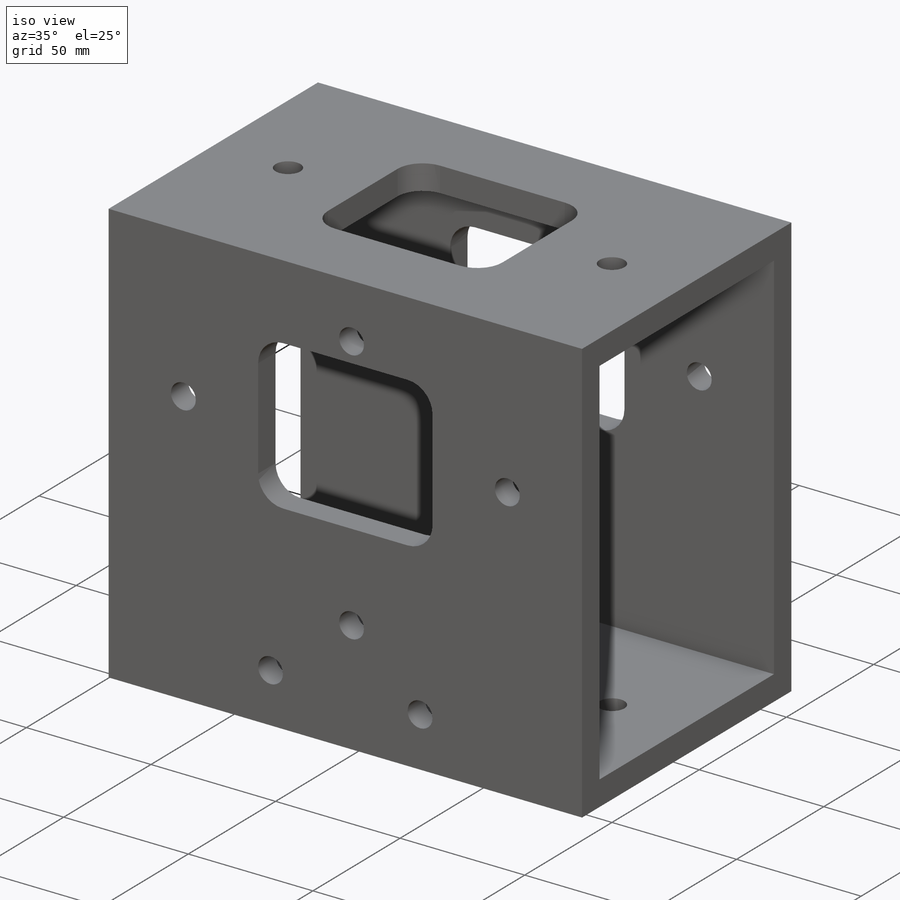
[diagram: iso view]
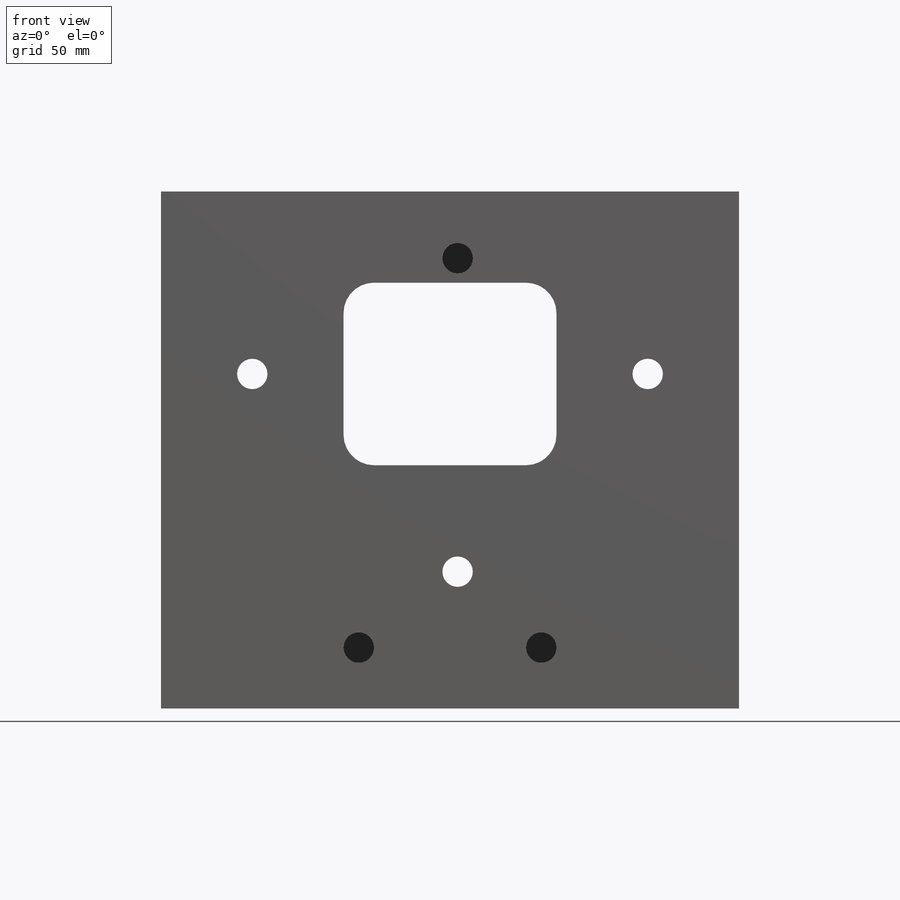
[diagram: front view]
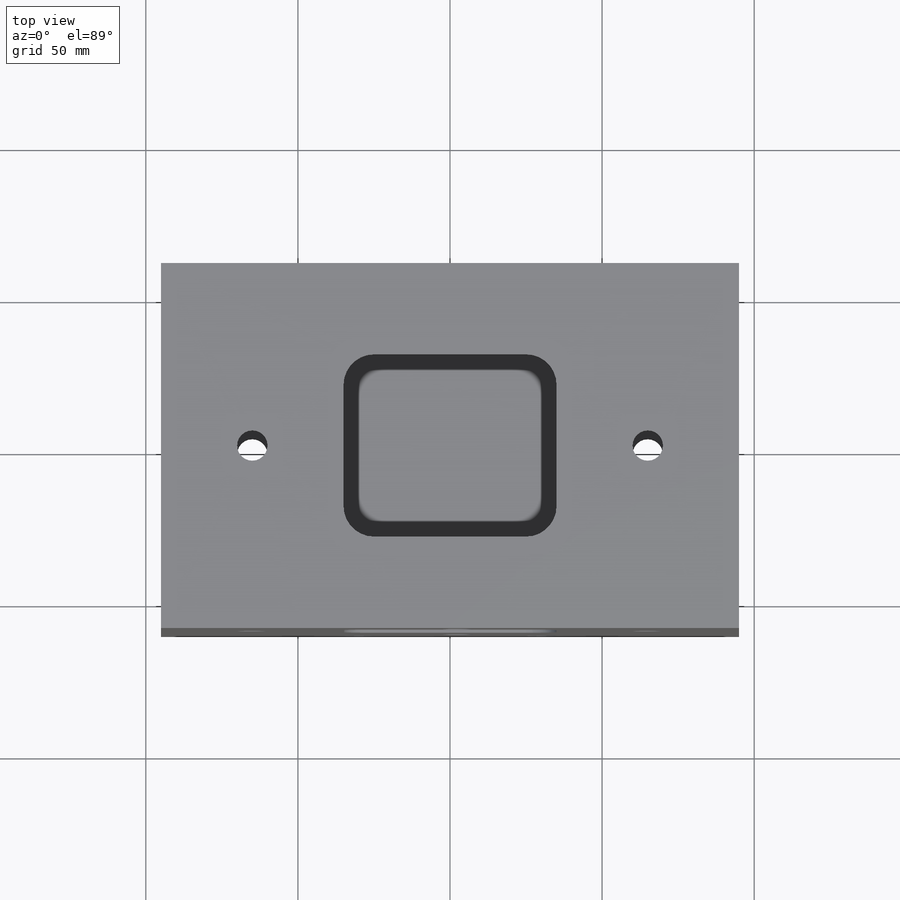
[diagram: top view]
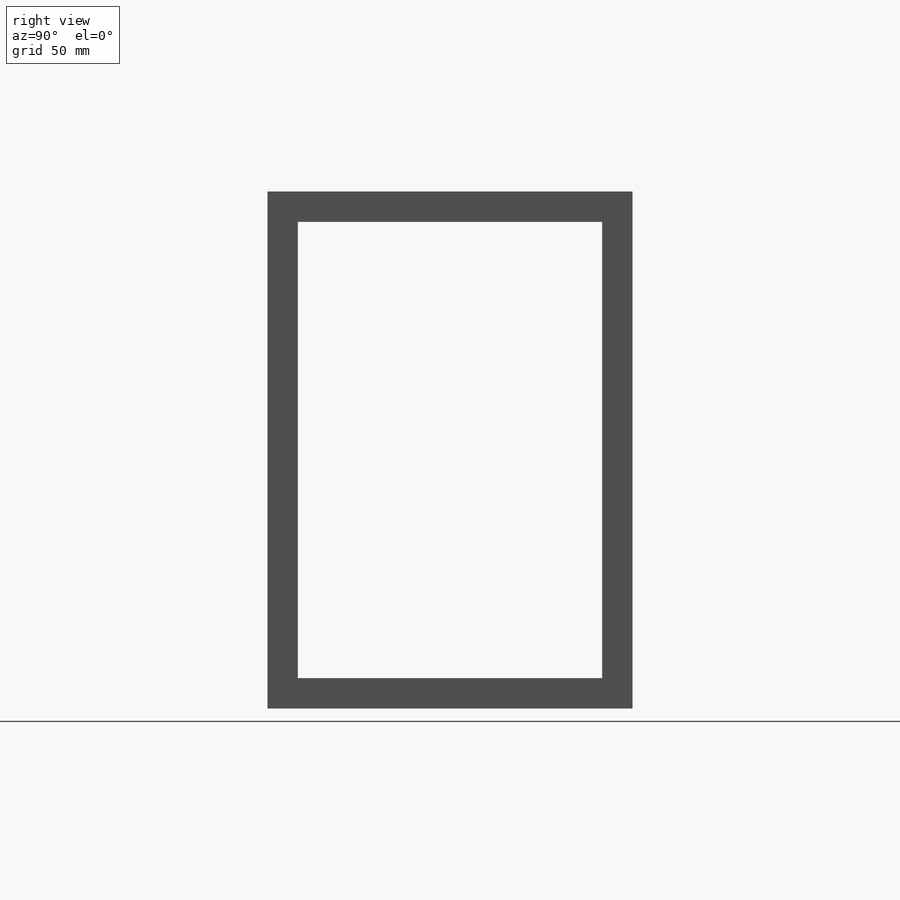
[diagram: right view]
SOLIDWORKS PART (.sldprt)
format: sldprt  version: not decoded by parser v0  size: 437,760 bytes
history: native  units: mm
features: sketch x19, plane x8, hole x5, cut_extrude x4, material x1, extrude x1 (+12 scaffold rows collapsed)
feature tree (50):
  scaffold x12  (default folders/planes/origin — collapsed)
  material  "1060 Alloy"
  sketch  "Sketch1"  dims[D1=190.0mm]
  extrude  "Boss-Extrude1"  Depth=170mm
  plane  "Plane1"  Offset=0mm
  sketch  "Sketch2"  dims[D1=10.0mm D2=10.0mm]
  cut_extrude  "Cut-Extrude1"  Depth=190mm
  plane  "Plane2"  Offset=0mm
  sketch  "Sketch3"  dims[D5=10.0mm D6=10.0mm D1=60.0mm D2=60.0mm D3=30.0mm D4=60.0mm]
  cut_extrude  "Cut-Extrude2"  Depth=15mm
  plane  "Plane3"  Offset=0mm
  sketch  "Sketch4"  dims[D5=10.0mm D1=60.0mm D2=60.0mm D3=60.0mm D4=30.0mm]
  cut_extrude  "Cut-Extrude3"  Depth=15mm
  plane  "Plane4"  Offset=0mm
  sketch  "Sketch5"  dims[D5=10.0mm D1=60.0mm D2=60.0mm D3=30.0mm D4=30.0mm]
  cut_extrude  "Cut-Extrude4"  Depth=15mm
  plane  "Plane5"  Offset=10mm
  sketch  "Sketch6"  dims[D1=30.0mm D2=30.0mm D3=45.0mm D4=60.0mm D5=60.0mm D6=92.5mm D7=8.0mm D8=92.5mm]
  hole  "M10x1.0 Tapped Hole1"  Diameter=9mm Depth=23mm
  sketch  "3DSketch1"
  sketch  "Sketch7"  dims[hole-wizard template sketch: 34 standard entries collapsed; hole parameters above]
  plane  "Plane6"  Offset=0mm
  sketch  "Sketch8"  dims[D1=30.0mm D2=30.0mm D3=60.0mm D4=60.0mm]
  hole  "M10x1.0 Tapped Hole2"  Diameter=9mm Depth=23mm
  sketch  "3DSketch2"
  sketch  "Sketch9"  dims[hole-wizard template sketch: 34 standard entries collapsed; hole parameters above]
  plane  "Plane7"  Offset=0mm
  sketch  "Sketch10"  dims[D1=92.5mm D2=8.0mm D3=20.0mm D4=20.0mm D5=65.0mm D6=65.0mm D7=60.0mm]
  hole  "M10x1.0 Tapped Hole3"  Diameter=9mm Depth=23mm
  sketch  "3DSketch5"
  sketch  "Sketch13"  dims[hole-wizard template sketch: 34 standard entries collapsed; hole parameters above]
  plane  "Plane8"  Offset=0mm
  sketch  "Sketch14"
  hole  "M10x1.0 Tapped Hole4"  Diameter=9mm Depth=23mm
  sketch  "3DSketch6"
  sketch  "Sketch15"  dims[hole-wizard template sketch: 34 standard entries collapsed; hole parameters above]
  hole  "M10x1.0 Tapped Hole5"  Diameter=9mm Depth=23mm
  sketch  "3DSketch7"
  sketch  "Sketch16"  dims[hole-wizard template sketch: 34 standard entries collapsed; hole parameters above]
decode coverage: 23 of 29 modeling features carry decoded parameters
note: ~ marks probable driven/reference dimensions
summary: Diameter pulled from absorbed wizard sketch
note: suppression state not decoded; provenance and decode notes live in map.json
